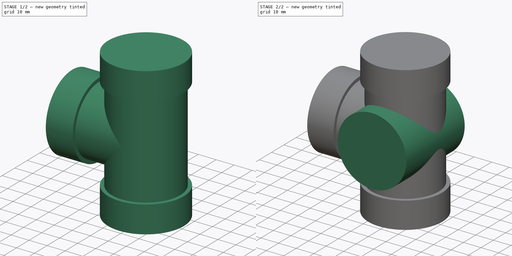
[diagram: build sequence overview — one tinted view per stage of 2, left to right]
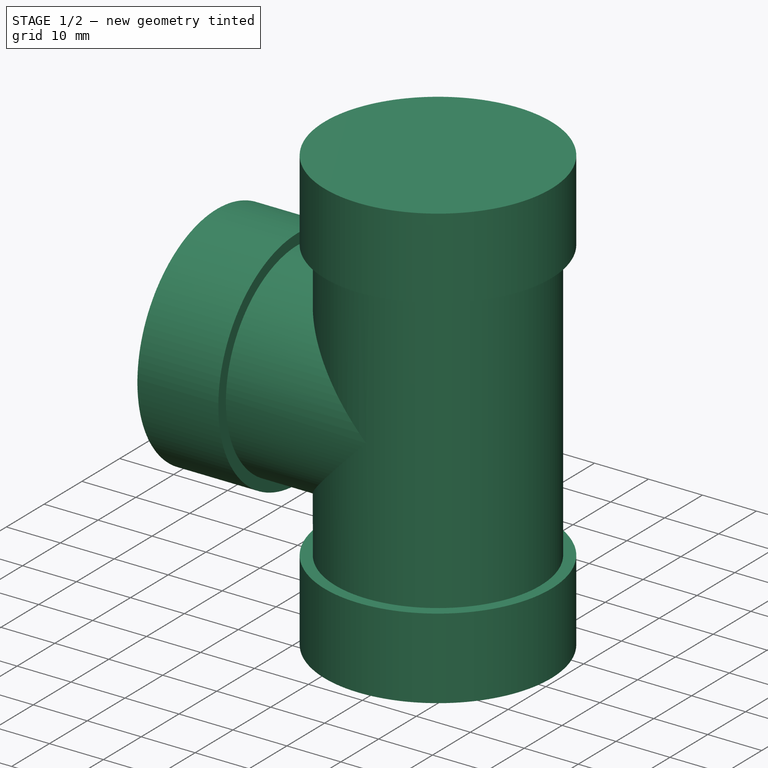
[diagram: stage 1 of 2 — iso view after this stage's code; geometry added in this stage tinted green]
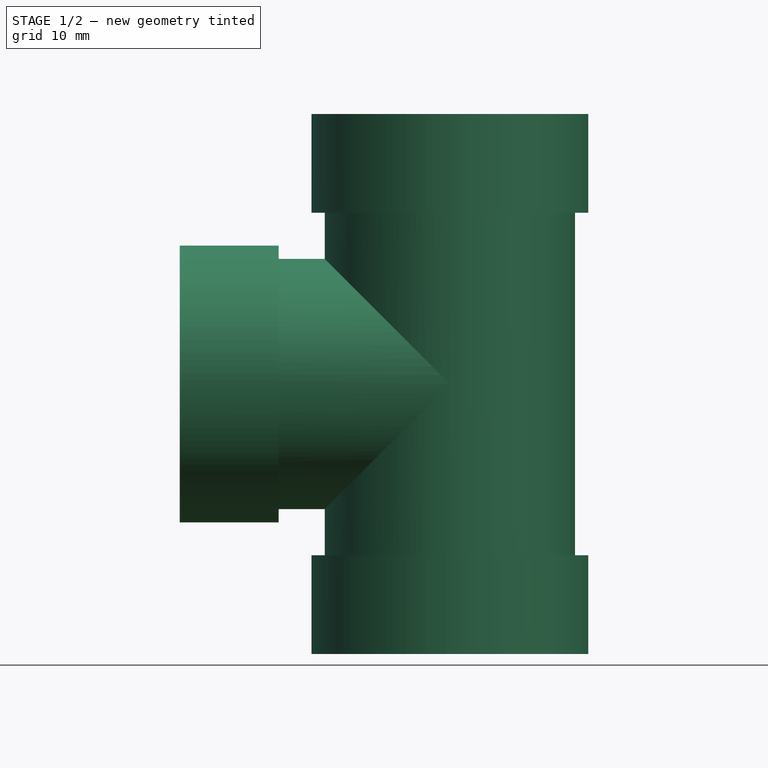
[diagram: stage 1 of 2 — front view after this stage's code; geometry added in this stage tinted green]
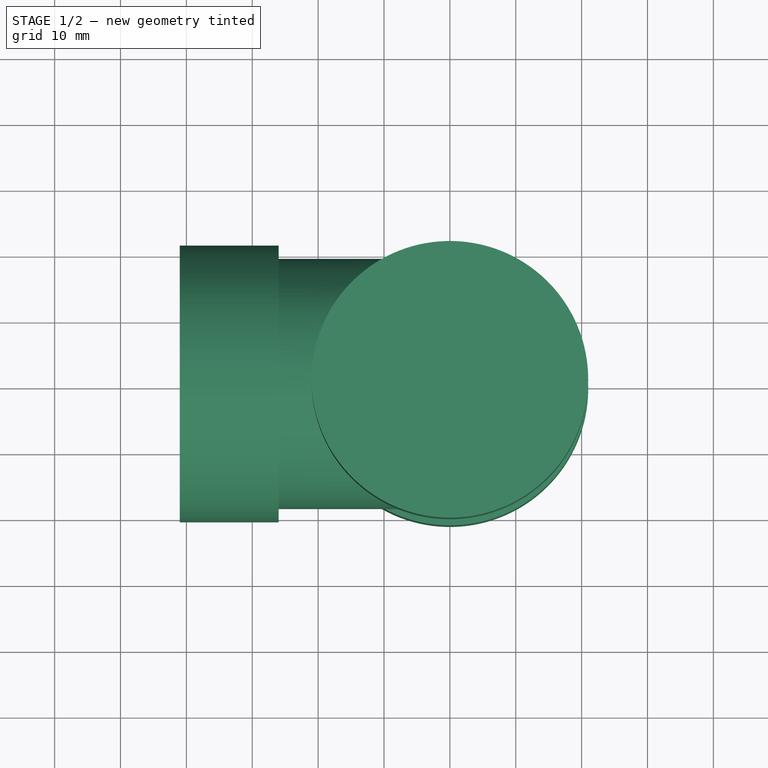
[diagram: stage 1 of 2 — top view after this stage's code; geometry added in this stage tinted green]
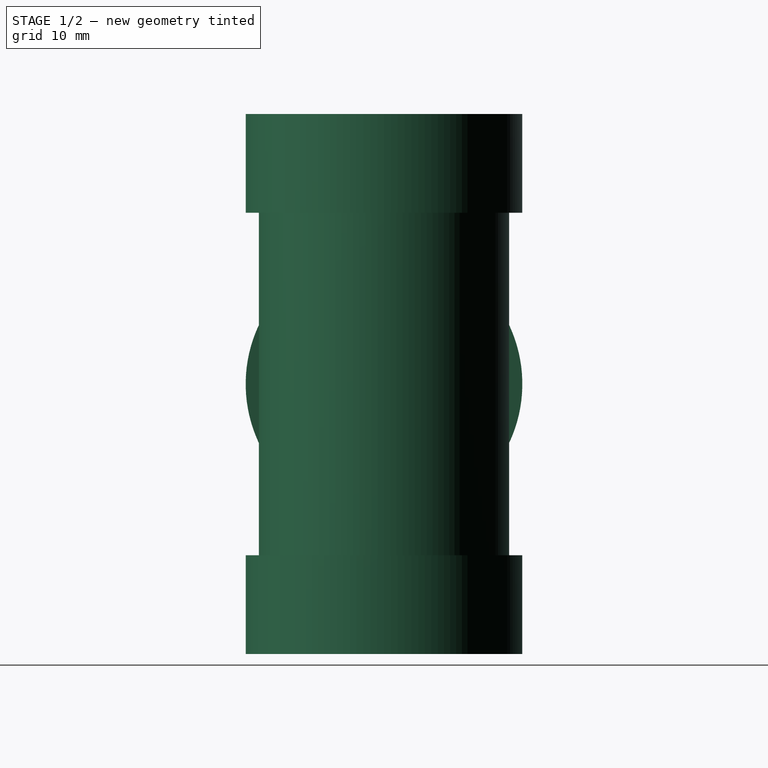
[diagram: stage 1 of 2 — right view after this stage's code; geometry added in this stage tinted green]
FCSTD DOCUMENT  (FreeCAD 1.2R20251209 (Git shallow))
Label: EBSE_VRG131
License: All rights reserved
objects: Sketcher::SketchObject×3, PartDesign::Revolution×2, PartDesign::Pad×2, App::Point×1, PartDesign::Body×1, App::DocumentObjectGroup×1
note: 19 computed .brp shape members not serialized (recipe doc carries the construction recipe); baked Part::Feature solids carry a one-line shape summary decoded from their .brp

FEATURE [Sketcher::SketchObject] Sketch
  ArcFitTolerance = 1e-06
  AttachmentSupport = -> [XZ_Plane]
  ExternalTypes = [0]
  FullyConstrained = true
  MakeInternals = false
  MapMode = 5
  Placement = pos=(0,0,0) rot=(1,0,0;1.5708rad)
  expr: Constraints[19] = 38 / 2
  sketch-geometry (8):
    g0: LineSegment StartX=0 StartY=-41 StartZ=0 EndX=21 EndY=-41 EndZ=0
    g1: LineSegment StartX=21 StartY=-41 StartZ=0 EndX=21 EndY=-26 EndZ=0
    g2: LineSegment StartX=21 StartY=-26 StartZ=0 EndX=19 EndY=-26 EndZ=0
    g3: LineSegment StartX=19 StartY=-26 StartZ=0 EndX=19 EndY=26 EndZ=0
    g4: LineSegment StartX=19 StartY=26 StartZ=0 EndX=21 EndY=26 EndZ=0
    g5: LineSegment StartX=21 StartY=26 StartZ=0 EndX=21 EndY=41 EndZ=0
    g6: LineSegment StartX=21 StartY=41 StartZ=0 EndX=0 EndY=41 EndZ=0
    g7: LineSegment StartX=0 StartY=41 StartZ=0 EndX=0 EndY=-41 EndZ=0
  constraints (24):
    c: PointOnObject(g0,g-2)
    c: Horizontal(g0)
    c: Coincident(g0,g1)
    c: Vertical(g1)
    c: Coincident(g1,g2)
    c: Horizontal(g2)
    c: Coincident(g2,g3)
    c: Vertical(g3)
    c: Coincident(g3,g4)
    c: Horizontal(g4)
    c: Coincident(g4,g5)
    c: Vertical(g5)
    c: Coincident(g5,g6)
    c: PointOnObject(g6,g-2)
    c: Horizontal(g6)
    c: Distance(g0,g6) = 82
    c: Distance(g5,g-1) = 41
    c: DistanceY(g5,g5) = 15
    c: DistanceY(g1,g1) = 15
    c: Distance(g-2,g3) = 19
    c: Vertical(g4,g1)
    c: Distance(g5,g-2) = 21
    c: Coincident(g7,g6)
    c: Coincident(g7,g0)
FEATURE [PartDesign::Revolution] Revolution
  Angle = 360
  Angle2 = 60
  Axis = (0,2e-16,1)
  Base = (0,0,0)
  Placement = pos=(0,0,0) rot=(1,0,0;1.5708rad)
  Profile = -> Sketch
  ReferenceAxis = -> Sketch [V_Axis]
  Refine = true
  Reversed = true
  Suppressed = false
  Type = 0
FEATURE [Sketcher::SketchObject] Sketch001
  ArcFitTolerance = 1e-06
  AttachmentSupport = -> [XZ_Plane]
  ExternalTypes = [0]
  FullyConstrained = true
  MakeInternals = false
  MapMode = 5
  Placement = pos=(0,0,0) rot=(1,0,0;1.5708rad)
  sketch-geometry (6):
    g0: LineSegment StartX=0 StartY=0 StartZ=0 EndX=0 EndY=-19 EndZ=0
    g1: LineSegment StartX=0 StartY=-19 StartZ=0 EndX=-26 EndY=-19 EndZ=0
    g2: LineSegment StartX=-26 StartY=-19 StartZ=0 EndX=-26 EndY=-21 EndZ=0
    g3: LineSegment StartX=-26 StartY=-21 StartZ=0 EndX=-41 EndY=-21 EndZ=0
    g4: LineSegment StartX=-41 StartY=-21 StartZ=0 EndX=-41 EndY=0 EndZ=0
    g5: LineSegment StartX=-41 StartY=0 StartZ=0 EndX=0 EndY=0 EndZ=0
  constraints (17):
    c: Coincident(g-1,g0)
    c: PointOnObject(g0,g-2)
    c: Coincident(g0,g1)
    c: Horizontal(g1)
    c: Coincident(g1,g2)
    c: Vertical(g2)
    c: Coincident(g2,g3)
    c: Horizontal(g3)
    c: Coincident(g3,g4)
    c: PointOnObject(g4,g-1)
    c: Vertical(g4)
    c: Coincident(g4,g5)
    c: Coincident(g5,g0)
    c: DistanceX(g3,g3) = 15
    c: DistanceY(g4,g4) = 21
    c: DistanceY(g0,g-1) = 19
    c: Distance(g-2,g4) = 41
FEATURE [PartDesign::Revolution] Revolution001
  Angle = 360
  Angle2 = 60
  Axis = (1,0,0)
  Base = (0,0,0)
  BaseFeature = -> Revolution
  Placement = pos=(0,0,0) rot=(1,0,0;1.5708rad)
  Profile = -> Sketch001
  ReferenceAxis = -> X_Axis
  Refine = true
  Reversed = true
  Suppressed = false
  Type = 0
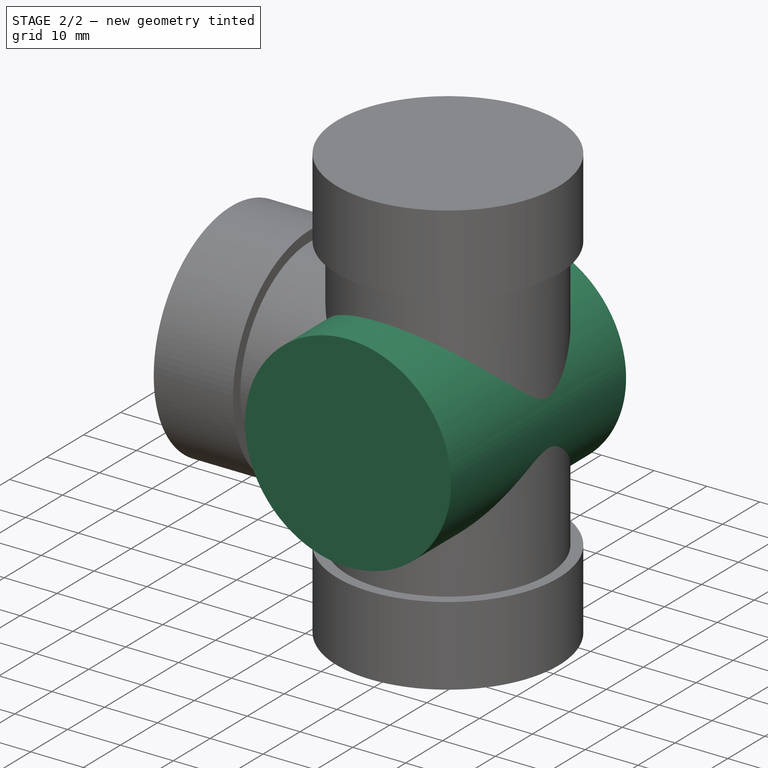
[diagram: stage 2 of 2 — iso view after this stage's code; geometry added in this stage tinted green]
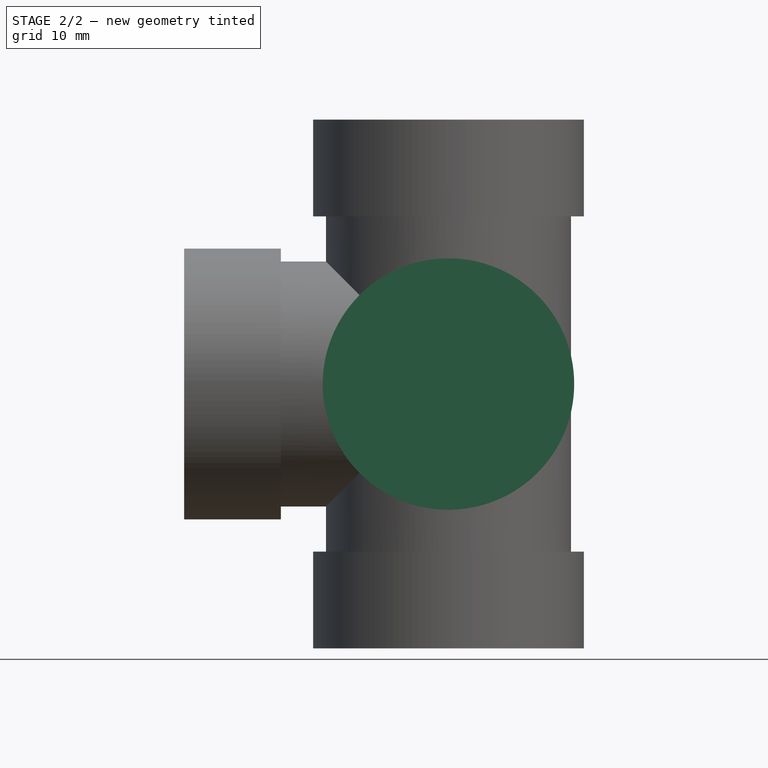
[diagram: stage 2 of 2 — front view after this stage's code; geometry added in this stage tinted green]
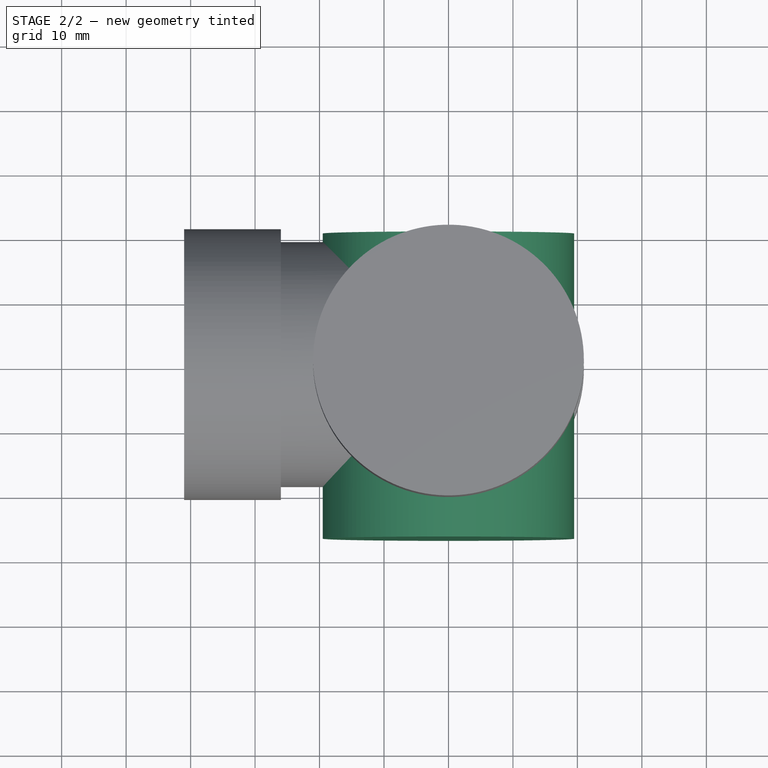
[diagram: stage 2 of 2 — top view after this stage's code; geometry added in this stage tinted green]
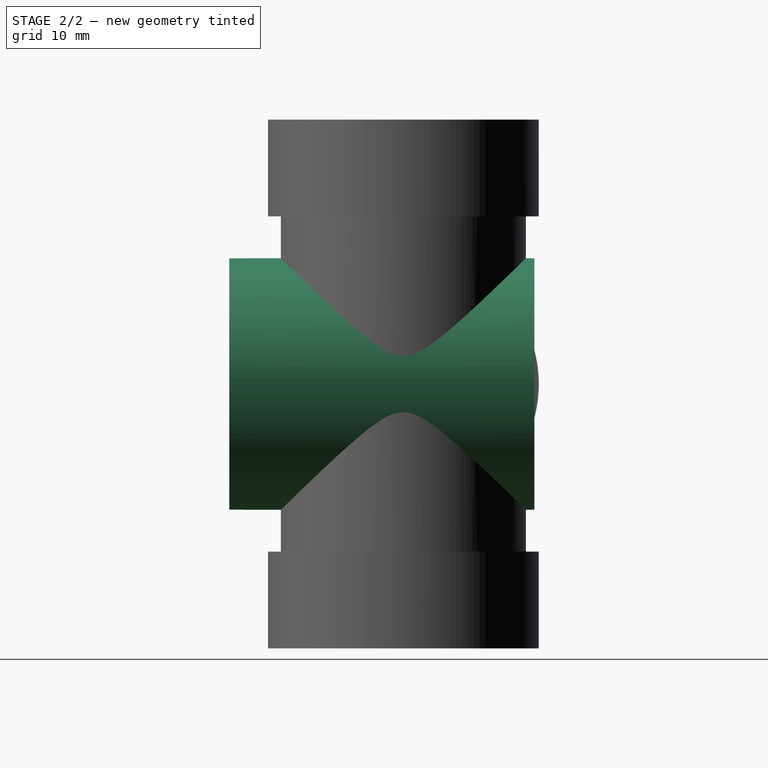
[diagram: stage 2 of 2 — right view after this stage's code; geometry added in this stage tinted green]
FEATURE [Sketcher::SketchObject] Sketch002
  ArcFitTolerance = 1e-06
  AttachmentSupport = -> [XZ_Plane]
  ExternalTypes = [0]
  FullyConstrained = true
  MakeInternals = false
  MapMode = 5
  Placement = pos=(0,0,0) rot=(1,0,0;1.5708rad)
  sketch-geometry (1):
    g0: Circle CenterX=0 CenterY=0 CenterZ=0 NormalX=0 NormalY=0 NormalZ=1 AngleXU=0 Radius=19.5
  constraints (2):
    c: Diameter(g0) = 39
    c: Coincident(g0,g-1)
FEATURE [PartDesign::Pad] Pad
  BaseFeature = -> Revolution001
  Direction = (0,-1,2e-16)
  Length = 20.33
  Length2 = 10
  Placement = pos=(0,0,0) rot=(1,0,0;1.5708rad)
  Profile = -> Sketch002
  ReferenceAxis = -> Sketch002 [N_Axis]
  Refine = true
  Reversed = true
  SideType = 0
  Suppressed = false
  Type = 0
  Type2 = 0
FEATURE [App::Point] Origin001  label="Origin"
  Role = Origin
FEATURE [PartDesign::Pad] Pad001
  BaseFeature = -> Pad
  Direction = (0,-1,0)
  Length = 27
  Length2 = 10
  Placement = pos=(0,0,0) rot=(1,0,0;1.5708rad)
  Profile = -> Sketch002 [Edge1]
  ReferenceAxis = -> Sketch002 [N_Axis]
  Refine = true
  SideType = 0
  Suppressed = false
  Type = 0
  Type2 = 0
FEATURE [PartDesign::Body] Body  label="DN25"
  AllowCompound = false
  Group = -> [Sketch,Revolution,Sketch001,Revolution001,Sketch002,Pad,Pad001]
  Origin = -> Origin
  Tip = -> Pad001
FEATURE [App::DocumentObjectGroup] Group  label="ESBE VRG131"
  Group = -> [Body]
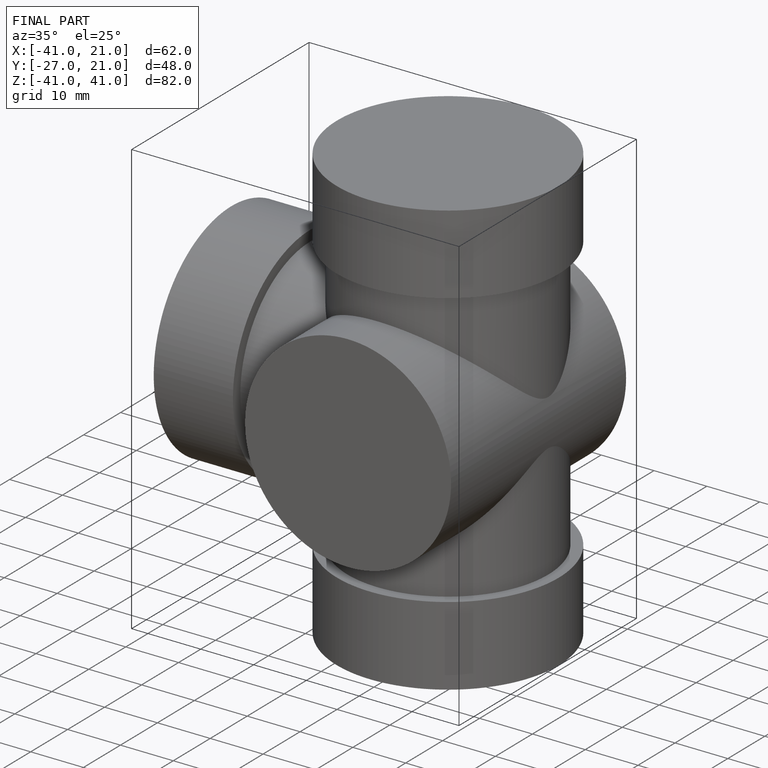
[diagram: finished part — iso view with bounding-box wireframe]
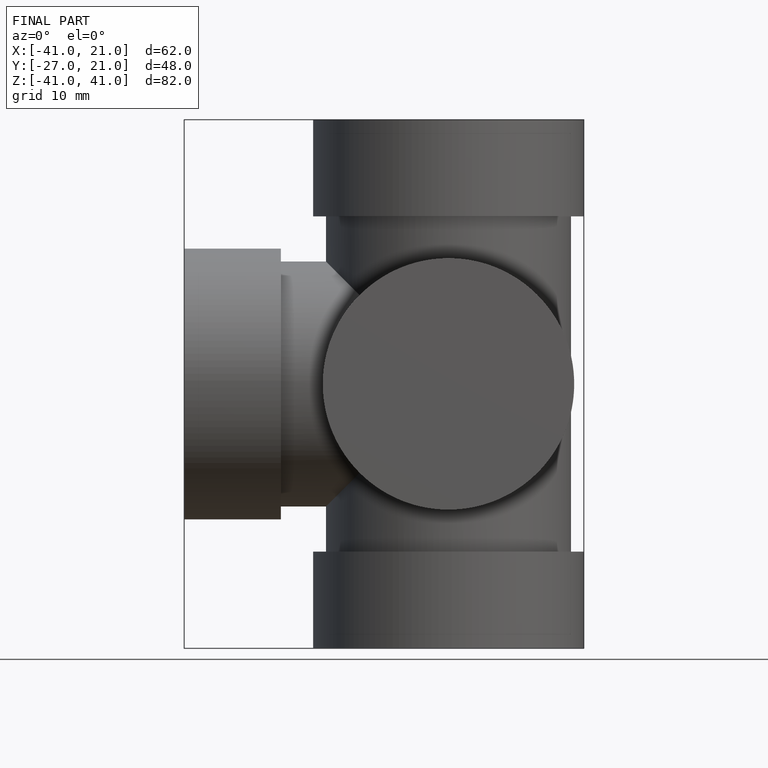
[diagram: finished part — front view with bounding-box wireframe]
